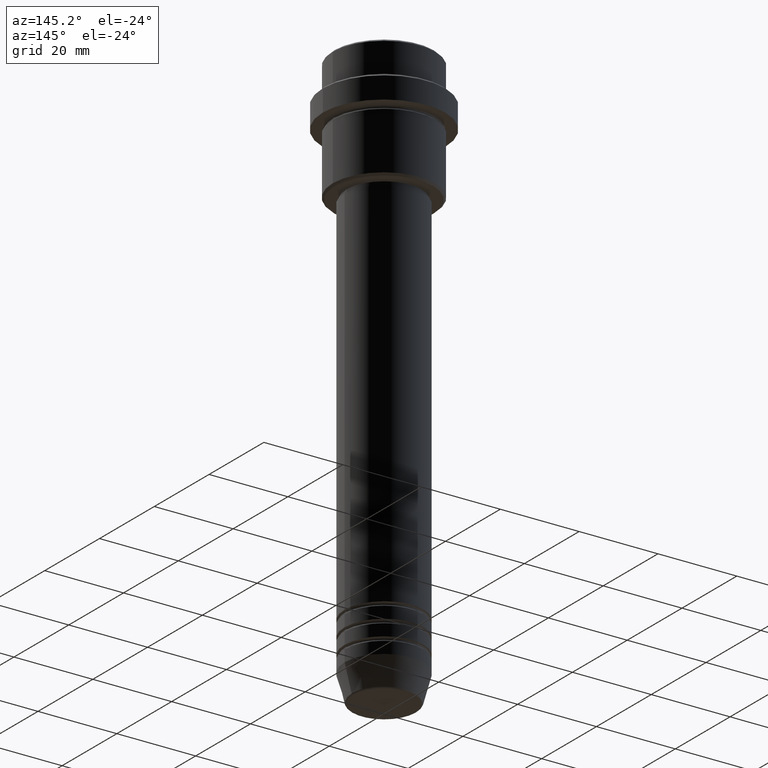
[diagram: clean part render]
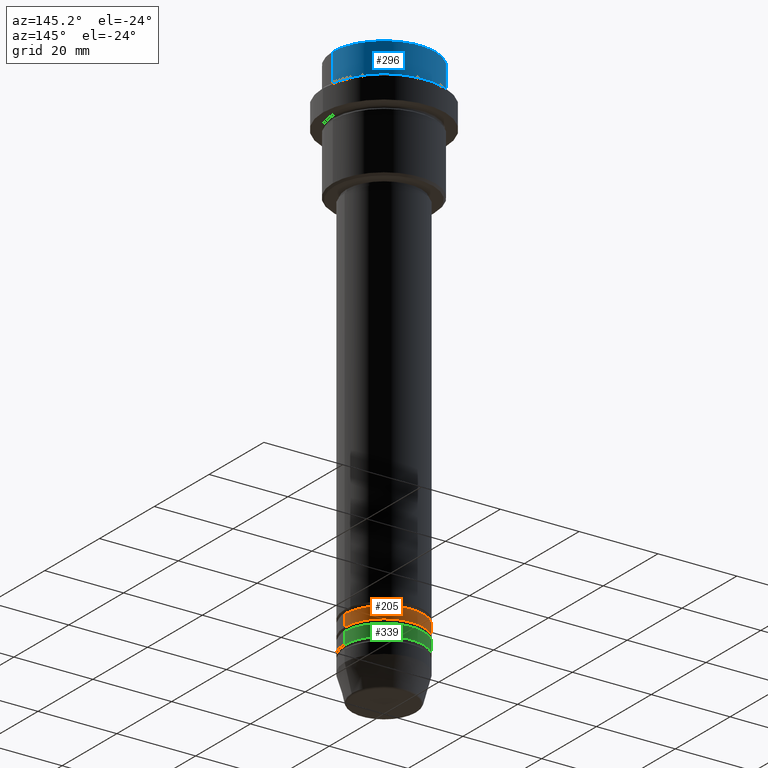
[diagram: same view with three faces highlighted in distinct colors, each labeled with its STEP entity id]
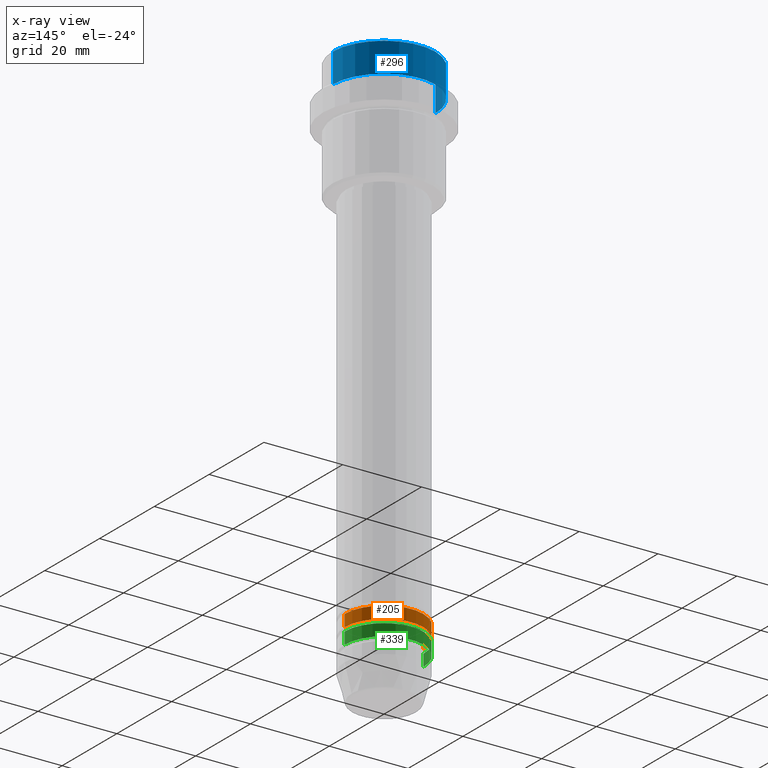
[diagram: x-ray of the same camera — body ghosted, the three highlighted faces saturated]
A machine part, auxiliary view with three faces highlighted in distinct colors.
The next image is the same camera in x-ray (body ghosted, the three faces saturated) — at least one of them is partly hidden behind the body in this view.
Their STEP definitions:

[orange] entity #205 — the highlighted cylindrical surface (partial cylindrical patch) has radius 10 mm, axis along (-0, -0, 1).
#53 = FACE_OUTER_BOUND ( 'NONE', #138, .T. ) ;
#120 = ORIENTED_EDGE ( 'NONE', *, *, #544, .F. ) ;
#138 = EDGE_LOOP ( 'NONE', ( #1022, #951, #608, #120 ) ) ;
#171 = DIRECTION ( 'NONE',  ( -0.000000000000000000, -0.000000000000000000, 1.000000000000000000 ) ) ;
#189 = CARTESIAN_POINT ( 'NONE',  ( -10.00000000000000000, 1.224646799147353256E-15, 0.000000000000000000 ) ) ;
#205 = ADVANCED_FACE ( 'NONE', ( #53 ), #487, .T. ) ;
#220 = CARTESIAN_POINT ( 'NONE',  ( -10.00000000000000000, 1.224646799147353256E-15, -130.9999999999998863 ) ) ;
#271 = CARTESIAN_POINT ( 'NONE',  ( 0.000000000000000000, 0.000000000000000000, 0.000000000000000000 ) ) ;
#295 = DIRECTION ( 'NONE',  ( 1.000000000000000000, 0.000000000000000000, 0.000000000000000000 ) ) ;
#317 = VERTEX_POINT ( 'NONE', #758 ) ;
#415 = AXIS2_PLACEMENT_3D ( 'NONE', #609, #1038, #295 ) ;
#480 = VERTEX_POINT ( 'NONE', #568 ) ;
#487 = CYLINDRICAL_SURFACE ( 'NONE', #1334, 10.00000000000000000 ) ;
#506 = VERTEX_POINT ( 'NONE', #590 ) ;
#515 = VECTOR ( 'NONE', #838, 1000.000000000000000 ) ;
#544 = EDGE_CURVE ( 'NONE', #317, #480, #1030, .T. ) ;
#568 = CARTESIAN_POINT ( 'NONE',  ( 10.00000000000000000, 0.000000000000000000, -127.9999999999998863 ) ) ;
#576 = EDGE_CURVE ( 'NONE', #317, #736, #936, .T. ) ;
#590 = CARTESIAN_POINT ( 'NONE',  ( -10.00000000000000000, 1.224646799147353256E-15, -127.9999999999998863 ) ) ;
#604 = CARTESIAN_POINT ( 'NONE',  ( 10.00000000000000000, 0.000000000000000000, 0.000000000000000000 ) ) ;
#608 = ORIENTED_EDGE ( 'NONE', *, *, #941, .F. ) ;
#609 = CARTESIAN_POINT ( 'NONE',  ( 0.000000000000000000, 0.000000000000000000, -130.9999999999998863 ) ) ;
#722 = DIRECTION ( 'NONE',  ( -0.000000000000000000, -0.000000000000000000, 1.000000000000000000 ) ) ;
#736 = VERTEX_POINT ( 'NONE', #220 ) ;
#758 = CARTESIAN_POINT ( 'NONE',  ( 10.00000000000000000, 0.000000000000000000, -130.9999999999998863 ) ) ;
#810 = CIRCLE ( 'NONE', #1101, 10.00000000000000000 ) ;
#838 = DIRECTION ( 'NONE',  ( -0.000000000000000000, -0.000000000000000000, 1.000000000000000000 ) ) ;
#871 = VECTOR ( 'NONE', #722, 1000.000000000000000 ) ;
#914 = DIRECTION ( 'NONE',  ( -0.000000000000000000, -0.000000000000000000, 1.000000000000000000 ) ) ;
#936 = CIRCLE ( 'NONE', #415, 10.00000000000000000 ) ;
#941 = EDGE_CURVE ( 'NONE', #480, #506, #810, .T. ) ;
#951 = ORIENTED_EDGE ( 'NONE', *, *, #1056, .T. ) ;
#1022 = ORIENTED_EDGE ( 'NONE', *, *, #576, .T. ) ;
#1030 = LINE ( 'NONE', #604, #871 ) ;
#1038 = DIRECTION ( 'NONE',  ( -0.000000000000000000, -0.000000000000000000, 1.000000000000000000 ) ) ;
#1056 = EDGE_CURVE ( 'NONE', #736, #506, #1254, .T. ) ;
#1101 = AXIS2_PLACEMENT_3D ( 'NONE', #1236, #914, #1359 ) ;
#1236 = CARTESIAN_POINT ( 'NONE',  ( 0.000000000000000000, 0.000000000000000000, -127.9999999999998863 ) ) ;
#1254 = LINE ( 'NONE', #189, #515 ) ;
#1259 = DIRECTION ( 'NONE',  ( 1.000000000000000000, 0.000000000000000000, 0.000000000000000000 ) ) ;
#1334 = AXIS2_PLACEMENT_3D ( 'NONE', #271, #171, #1259 ) ;
#1359 = DIRECTION ( 'NONE',  ( 1.000000000000000000, 0.000000000000000000, 0.000000000000000000 ) ) ;

[blue] entity #296 — the highlighted cylindrical surface (partial cylindrical patch) has radius 13 mm, axis along (-0, -0, 1).
#16 = DIRECTION ( 'NONE',  ( -0.000000000000000000, -0.000000000000000000, 1.000000000000000000 ) ) ;
#32 = ORIENTED_EDGE ( 'NONE', *, *, #373, .T. ) ;
#45 = CARTESIAN_POINT ( 'NONE',  ( -12.99999999999999822, 1.592040838891558898E-15, 0.000000000000000000 ) ) ;
#254 = AXIS2_PLACEMENT_3D ( 'NONE', #426, #16, #862 ) ;
#296 = ADVANCED_FACE ( 'NONE', ( #527 ), #453, .T. ) ;
#363 = ORIENTED_EDGE ( 'NONE', *, *, #440, .T. ) ;
#373 = EDGE_CURVE ( 'NONE', #797, #658, #1006, .T. ) ;
#407 = DIRECTION ( 'NONE',  ( 1.000000000000000000, 0.000000000000000000, 0.000000000000000000 ) ) ;
#420 = CARTESIAN_POINT ( 'NONE',  ( 0.000000000000000000, 0.000000000000000000, -0.4999999999999900080 ) ) ;
#426 = CARTESIAN_POINT ( 'NONE',  ( 0.000000000000000000, 0.000000000000000000, 0.000000000000000000 ) ) ;
#440 = EDGE_CURVE ( 'NONE', #1354, #797, #999, .T. ) ;
#453 = CYLINDRICAL_SURFACE ( 'NONE', #254, 12.99999999999999822 ) ;
#514 = DIRECTION ( 'NONE',  ( -0.000000000000000000, -0.000000000000000000, 1.000000000000000000 ) ) ;
#527 = FACE_OUTER_BOUND ( 'NONE', #1294, .T. ) ;
#548 = VERTEX_POINT ( 'NONE', #1045 ) ;
#558 = ORIENTED_EDGE ( 'NONE', *, *, #559, .F. ) ;
#559 = EDGE_CURVE ( 'NONE', #548, #658, #1279, .T. ) ;
#595 = EDGE_CURVE ( 'NONE', #548, #1354, #1074, .T. ) ;
#618 = DIRECTION ( 'NONE',  ( -0.000000000000000000, -0.000000000000000000, 1.000000000000000000 ) ) ;
#631 = ORIENTED_EDGE ( 'NONE', *, *, #595, .T. ) ;
#639 = AXIS2_PLACEMENT_3D ( 'NONE', #1284, #514, #407 ) ;
#658 = VERTEX_POINT ( 'NONE', #818 ) ;
#714 = VECTOR ( 'NONE', #618, 1000.000000000000000 ) ;
#774 = DIRECTION ( 'NONE',  ( 1.000000000000000000, 0.000000000000000000, 0.000000000000000000 ) ) ;
#797 = VERTEX_POINT ( 'NONE', #1097 ) ;
#818 = CARTESIAN_POINT ( 'NONE',  ( 12.99999999999999822, 0.000000000000000000, -0.4999999999999900080 ) ) ;
#845 = CARTESIAN_POINT ( 'NONE',  ( 12.99999999999999822, 0.000000000000000000, 0.000000000000000000 ) ) ;
#862 = DIRECTION ( 'NONE',  ( 1.000000000000000000, 0.000000000000000000, 0.000000000000000000 ) ) ;
#870 = DIRECTION ( 'NONE',  ( 0.000000000000000000, 0.000000000000000000, -1.000000000000000000 ) ) ;
#999 = LINE ( 'NONE', #45, #1213 ) ;
#1006 = CIRCLE ( 'NONE', #1194, 12.99999999999999822 ) ;
#1045 = CARTESIAN_POINT ( 'NONE',  ( 12.99999999999999822, 0.000000000000000000, -7.999999999999998224 ) ) ;
#1074 = CIRCLE ( 'NONE', #639, 12.99999999999999822 ) ;
#1097 = CARTESIAN_POINT ( 'NONE',  ( -12.99999999999999822, 1.592040838891558898E-15, -0.4999999999999900080 ) ) ;
#1122 = DIRECTION ( 'NONE',  ( -0.000000000000000000, -0.000000000000000000, 1.000000000000000000 ) ) ;
#1194 = AXIS2_PLACEMENT_3D ( 'NONE', #420, #870, #774 ) ;
#1213 = VECTOR ( 'NONE', #1122, 1000.000000000000000 ) ;
#1279 = LINE ( 'NONE', #845, #714 ) ;
#1284 = CARTESIAN_POINT ( 'NONE',  ( 0.000000000000000000, 0.000000000000000000, -7.999999999999998224 ) ) ;
#1294 = EDGE_LOOP ( 'NONE', ( #631, #363, #32, #558 ) ) ;
#1349 = CARTESIAN_POINT ( 'NONE',  ( -12.99999999999999822, 1.592040838891558898E-15, -7.999999999999998224 ) ) ;
#1354 = VERTEX_POINT ( 'NONE', #1349 ) ;

[green] entity #339 — the highlighted cylindrical surface (partial cylindrical patch) has radius 10 mm, axis along (-0, -0, 1).
#10 = CIRCLE ( 'NONE', #1263, 10.00000000000000000 ) ;
#91 = EDGE_CURVE ( 'NONE', #218, #1029, #173, .T. ) ;
#94 = DIRECTION ( 'NONE',  ( 1.000000000000000000, 0.000000000000000000, 0.000000000000000000 ) ) ;
#173 = CIRCLE ( 'NONE', #953, 10.00000000000000000 ) ;
#218 = VERTEX_POINT ( 'NONE', #1034 ) ;
#266 = VECTOR ( 'NONE', #523, 1000.000000000000000 ) ;
#301 = EDGE_CURVE ( 'NONE', #546, #1351, #10, .T. ) ;
#339 = ADVANCED_FACE ( 'NONE', ( #1199 ), #1189, .T. ) ;
#377 = DIRECTION ( 'NONE',  ( -0.000000000000000000, -0.000000000000000000, 1.000000000000000000 ) ) ;
#385 = LINE ( 'NONE', #1186, #266 ) ;
#408 = ORIENTED_EDGE ( 'NONE', *, *, #301, .F. ) ;
#433 = DIRECTION ( 'NONE',  ( 1.000000000000000000, 0.000000000000000000, 0.000000000000000000 ) ) ;
#446 = ORIENTED_EDGE ( 'NONE', *, *, #91, .T. ) ;
#465 = CARTESIAN_POINT ( 'NONE',  ( -10.00000000000000000, 1.224646799147353256E-15, -131.9999999999998863 ) ) ;
#523 = DIRECTION ( 'NONE',  ( -0.000000000000000000, -0.000000000000000000, 1.000000000000000000 ) ) ;
#546 = VERTEX_POINT ( 'NONE', #1157 ) ;
#602 = EDGE_CURVE ( 'NONE', #218, #546, #1255, .T. ) ;
#637 = AXIS2_PLACEMENT_3D ( 'NONE', #638, #780, #94 ) ;
#638 = CARTESIAN_POINT ( 'NONE',  ( 0.000000000000000000, 0.000000000000000000, 0.000000000000000000 ) ) ;
#717 = CARTESIAN_POINT ( 'NONE',  ( 10.00000000000000000, 0.000000000000000000, 0.000000000000000000 ) ) ;
#780 = DIRECTION ( 'NONE',  ( -0.000000000000000000, -0.000000000000000000, 1.000000000000000000 ) ) ;
#939 = EDGE_LOOP ( 'NONE', ( #446, #1114, #408, #1210 ) ) ;
#953 = AXIS2_PLACEMENT_3D ( 'NONE', #1183, #377, #1266 ) ;
#1029 = VERTEX_POINT ( 'NONE', #1053 ) ;
#1034 = CARTESIAN_POINT ( 'NONE',  ( 10.00000000000000000, 0.000000000000000000, -134.9999999999998863 ) ) ;
#1053 = CARTESIAN_POINT ( 'NONE',  ( -10.00000000000000000, 1.224646799147353256E-15, -134.9999999999998863 ) ) ;
#1100 = DIRECTION ( 'NONE',  ( -0.000000000000000000, -0.000000000000000000, 1.000000000000000000 ) ) ;
#1114 = ORIENTED_EDGE ( 'NONE', *, *, #1121, .T. ) ;
#1121 = EDGE_CURVE ( 'NONE', #1029, #1351, #385, .T. ) ;
#1157 = CARTESIAN_POINT ( 'NONE',  ( 10.00000000000000000, 0.000000000000000000, -131.9999999999998863 ) ) ;
#1183 = CARTESIAN_POINT ( 'NONE',  ( 0.000000000000000000, 0.000000000000000000, -134.9999999999998863 ) ) ;
#1186 = CARTESIAN_POINT ( 'NONE',  ( -10.00000000000000000, 1.224646799147353256E-15, 0.000000000000000000 ) ) ;
#1189 = CYLINDRICAL_SURFACE ( 'NONE', #637, 10.00000000000000000 ) ;
#1199 = FACE_OUTER_BOUND ( 'NONE', #939, .T. ) ;
#1206 = CARTESIAN_POINT ( 'NONE',  ( 0.000000000000000000, 0.000000000000000000, -131.9999999999998863 ) ) ;
#1210 = ORIENTED_EDGE ( 'NONE', *, *, #602, .F. ) ;
#1255 = LINE ( 'NONE', #717, #1308 ) ;
#1263 = AXIS2_PLACEMENT_3D ( 'NONE', #1206, #1100, #433 ) ;
#1266 = DIRECTION ( 'NONE',  ( 1.000000000000000000, 0.000000000000000000, 0.000000000000000000 ) ) ;
#1308 = VECTOR ( 'NONE', #1397, 1000.000000000000000 ) ;
#1351 = VERTEX_POINT ( 'NONE', #465 ) ;
#1397 = DIRECTION ( 'NONE',  ( -0.000000000000000000, -0.000000000000000000, 1.000000000000000000 ) ) ;